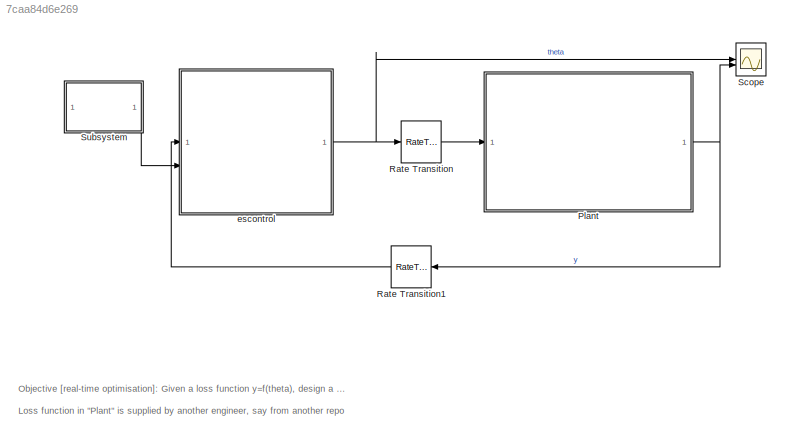
MODEL slx_7caa84d6e269
KIND model
CONFIG AbsTol = auto
CONFIG EnableMultiTasking = off
CONFIG FixedStep = Ts
CONFIG MaxStep = auto
CONFIG MinStep = auto
CONFIG RelTol = 1e-3
CONFIG SampleTimeConstraint = Unconstrained
CONFIG SolverName = VariableStepAuto
CONFIG StartTime = 0.0
CONFIG StopTime = Tsim
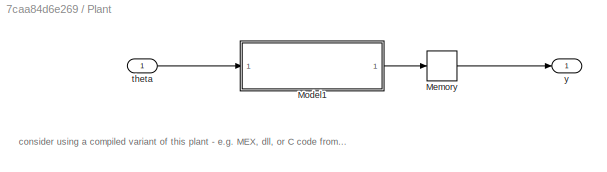
BLOCK [SubSystem] Plant
BLOCK [Memory] Plant/Memory
BLOCK [ModelReference] Plant/Model1
  ModelNameDialog = plantFunction.slx
  ModelReferenceVersion = 1.20
BLOCK [Inport] Plant/theta
BLOCK [Outport] Plant/y
BLOCK [RateTransition] Rate Transition
BLOCK [RateTransition] Rate Transition1
  NameLocation = top
BLOCK [Scope] Scope
  Floating = off
  NumInputPorts = 2
  ScopeSpecificationString = Simulink.scopes.TimeScopeBlockCfg('CurrentConfiguration', extmgr.ConfigurationSet(extmgr.Configuration('Core','General UI',true),extmgr.Configuration('Core','Source UI',true),extmgr.Configuration('Sources','WiredSimulink',true),extmgr.Configuration('Visuals','Time Domain',true,'SerializedDisplays',{struct('MinYLimReal','-1.3767','MaxYLimReal','2.61082','YLabelReal','','MinYLimMag','0.00000','MaxYL...<+2245ch>
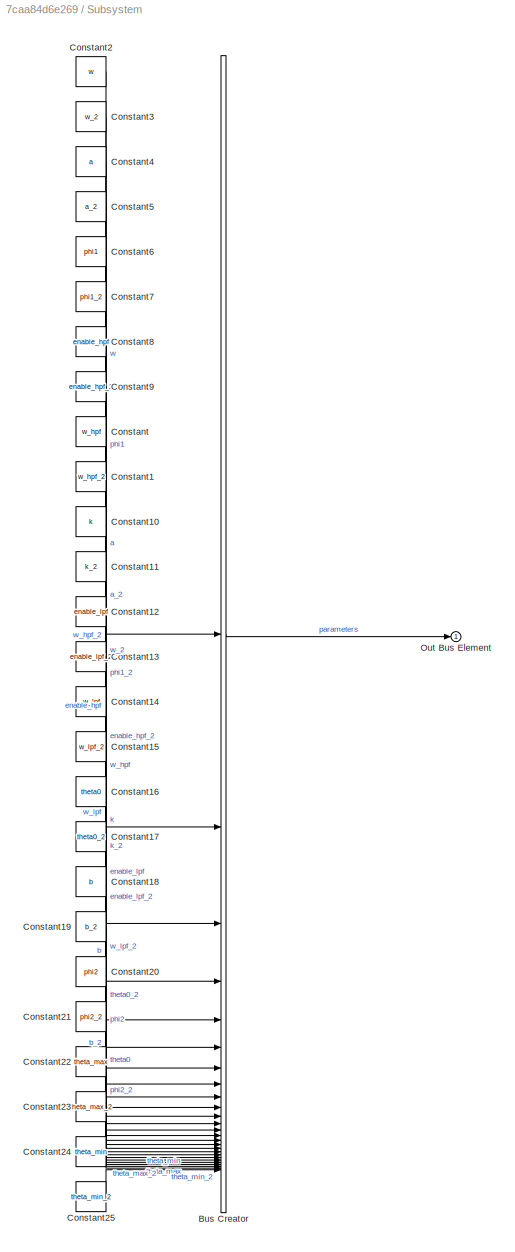
BLOCK [SubSystem] Subsystem
BLOCK [BusCreator] Subsystem/Bus Creator
  DisplayOption = bar
  InheritFromInputs = on
  Inputs = 26
BLOCK [Constant] Subsystem/Constant
  Value = w_hpf
BLOCK [Constant] Subsystem/Constant1
  Value = w_hpf_2
BLOCK [Constant] Subsystem/Constant10
  Value = k
BLOCK [Constant] Subsystem/Constant11
  Value = k_2
BLOCK [Constant] Subsystem/Constant12
  Value = enable_lpf
BLOCK [Constant] Subsystem/Constant13
  Value = enable_lpf_2
BLOCK [Constant] Subsystem/Constant14
  Value = w_lpf
BLOCK [Constant] Subsystem/Constant15
  Value = w_lpf_2
BLOCK [Constant] Subsystem/Constant16
  Value = theta0
BLOCK [Constant] Subsystem/Constant17
  Value = theta0_2
BLOCK [Constant] Subsystem/Constant18
  Value = b
BLOCK [Constant] Subsystem/Constant19
  Value = b_2
BLOCK [Constant] Subsystem/Constant2
  Value = w
BLOCK [Constant] Subsystem/Constant20
  Value = phi2
BLOCK [Constant] Subsystem/Constant21
  Value = phi2_2
BLOCK [Constant] Subsystem/Constant22
  Value = theta_max
BLOCK [Constant] Subsystem/Constant23
  Value = theta_max_2
BLOCK [Constant] Subsystem/Constant24
  Value = theta_min
BLOCK [Constant] Subsystem/Constant25
  Value = theta_min_2
BLOCK [Constant] Subsystem/Constant3
  Value = w_2
BLOCK [Constant] Subsystem/Constant4
  Value = a
BLOCK [Constant] Subsystem/Constant5
  Value = a_2
BLOCK [Constant] Subsystem/Constant6
  Value = phi1
BLOCK [Constant] Subsystem/Constant7
  Value = phi1_2
BLOCK [Constant] Subsystem/Constant8
  Value = enable_hpf
BLOCK [Constant] Subsystem/Constant9
  Value = enable_hpf_2
BLOCK [Outport] Subsystem/Out Bus Element
BLOCK [ModelReference] escontrol
  ModelNameDialog = escontrol.slx
  ModelReferenceVersion = 1.45
  PortSchema = {"entries":[{"content":{"sides":[{"content":{"connectorIds":["In2","In1"]},"type":"ConnectorPlacement.EquallySpacedRectSide","uuid":"cab1f9e3-096f-40fe-9f96-b4db1ab492ca"},{"content":{"connectorIds":["Out1"],"side":"RIGHT"},"type":"ConnectorPlacement.EquallySpacedRectSide","uuid":"bf6e8ef4-d75c-497f-9a18-022bba17c823"},{"content":{"side":"TOP"},"type":"ConnectorPlacement.EquallySpacedRectSide","uu...<+228ch>
ANNOTATION (root): Objective [real-time optimisation]: Given a loss function y=f(theta), design a controller whose output is theta which, over time, minimises y. Loss function in "Plant" is supplied by another engineer, say from another repo
ANNOTATION Plant: consider using a compiled variant of this plant - e.g. MEX, dll, or C code from a plant model with a fixed-step solver and supporting continuous states
LINE Plant/Memory:1 -> Plant/y:1
LINE Plant/Model1:1 -> Plant/Memory:1
LINE Plant/theta:1 -> Plant/Model1:1
NET Plant:1 -> Rate Transition1:1, Scope:2
LINE Rate Transition1:1 -> escontrol:1
LINE Rate Transition:1 -> Plant:1
LINE Subsystem/Bus Creator:1 -> Subsystem/Out Bus Element:1
LINE Subsystem/Constant10:1 -> Subsystem/Bus Creator:11
LINE Subsystem/Constant11:1 -> Subsystem/Bus Creator:12
LINE Subsystem/Constant12:1 -> Subsystem/Bus Creator:13
LINE Subsystem/Constant13:1 -> Subsystem/Bus Creator:14
LINE Subsystem/Constant14:1 -> Subsystem/Bus Creator:15
LINE Subsystem/Constant15:1 -> Subsystem/Bus Creator:16
LINE Subsystem/Constant16:1 -> Subsystem/Bus Creator:17
LINE Subsystem/Constant17:1 -> Subsystem/Bus Creator:18
LINE Subsystem/Constant18:1 -> Subsystem/Bus Creator:19
LINE Subsystem/Constant19:1 -> Subsystem/Bus Creator:20
LINE Subsystem/Constant1:1 -> Subsystem/Bus Creator:10
LINE Subsystem/Constant20:1 -> Subsystem/Bus Creator:21
LINE Subsystem/Constant21:1 -> Subsystem/Bus Creator:22
LINE Subsystem/Constant22:1 -> Subsystem/Bus Creator:23
LINE Subsystem/Constant23:1 -> Subsystem/Bus Creator:24
LINE Subsystem/Constant24:1 -> Subsystem/Bus Creator:25
LINE Subsystem/Constant25:1 -> Subsystem/Bus Creator:26
LINE Subsystem/Constant2:1 -> Subsystem/Bus Creator:1
LINE Subsystem/Constant3:1 -> Subsystem/Bus Creator:2
LINE Subsystem/Constant4:1 -> Subsystem/Bus Creator:3
LINE Subsystem/Constant5:1 -> Subsystem/Bus Creator:4
LINE Subsystem/Constant6:1 -> Subsystem/Bus Creator:5
LINE Subsystem/Constant7:1 -> Subsystem/Bus Creator:6
LINE Subsystem/Constant8:1 -> Subsystem/Bus Creator:7
LINE Subsystem/Constant9:1 -> Subsystem/Bus Creator:8
LINE Subsystem/Constant:1 -> Subsystem/Bus Creator:9
LINE Subsystem:1 -> escontrol:2
NET escontrol:1 -> Rate Transition:1, Scope:1
note: NET lines group one-source signal fan-out (src -> all destinations, sorted); 1:1 wires keep LINE
